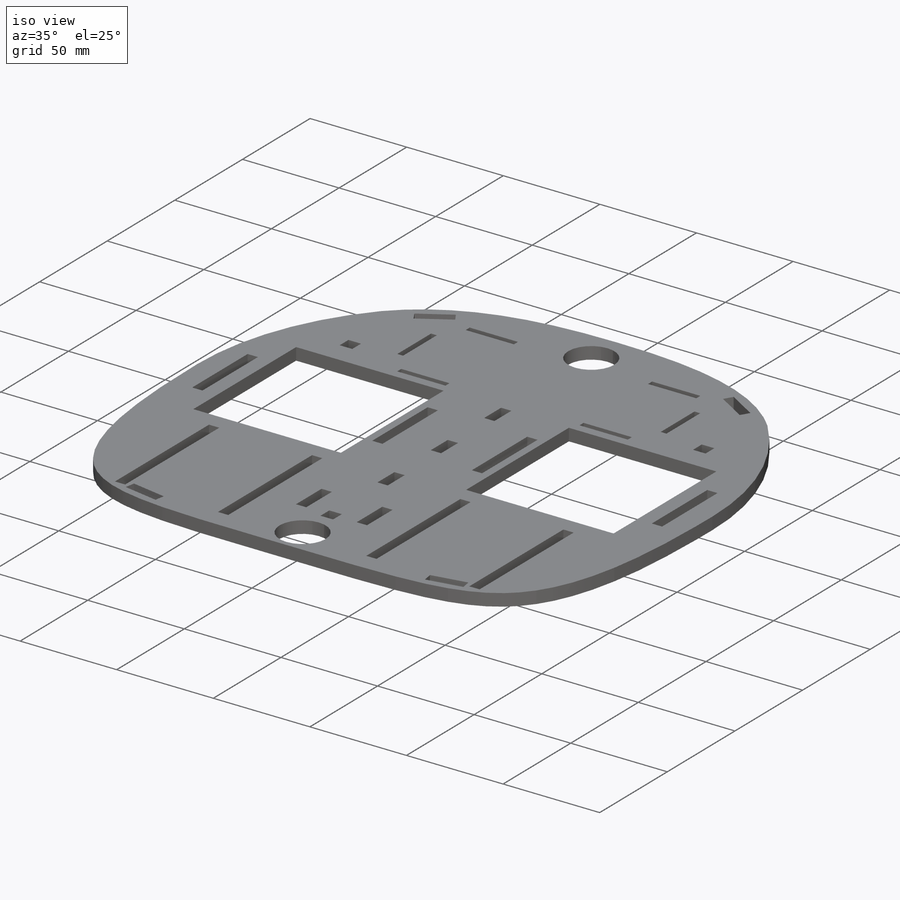
[diagram: iso view]
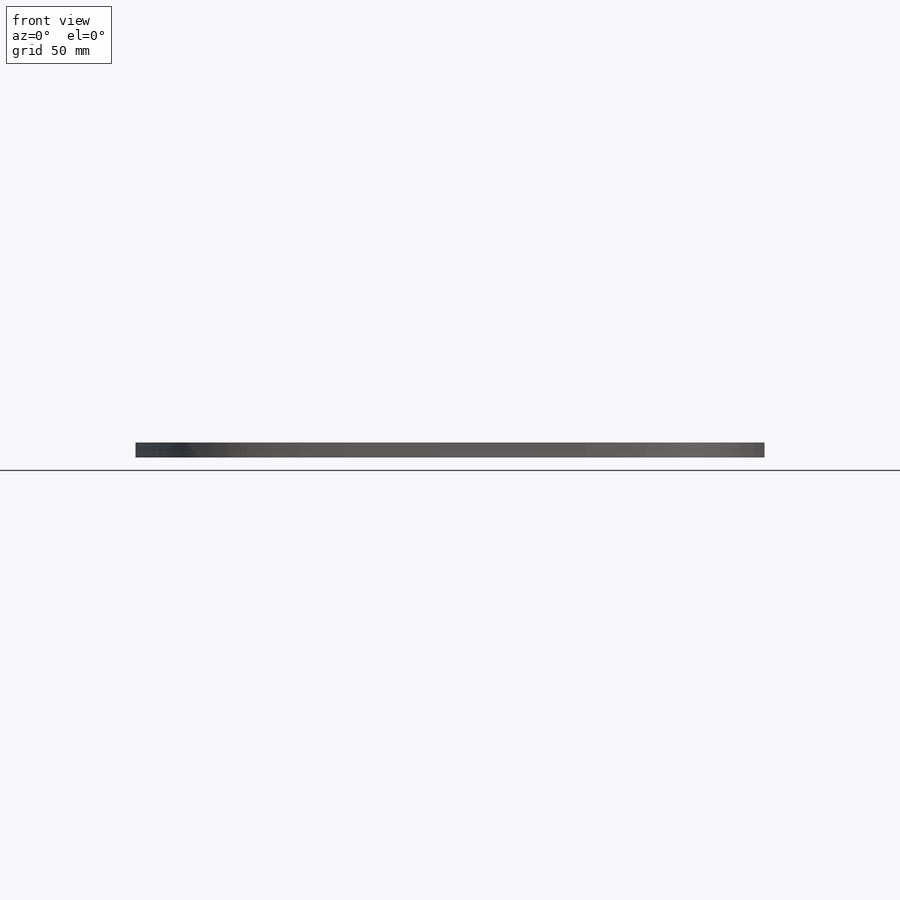
[diagram: front view]
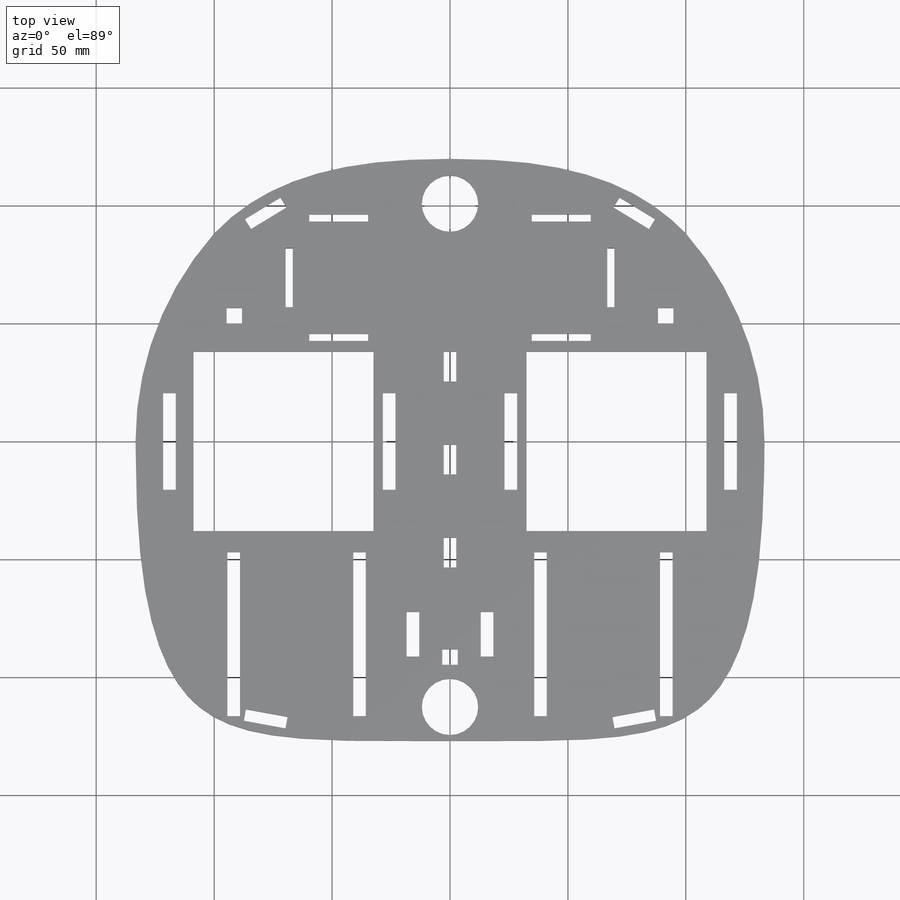
[diagram: top view]
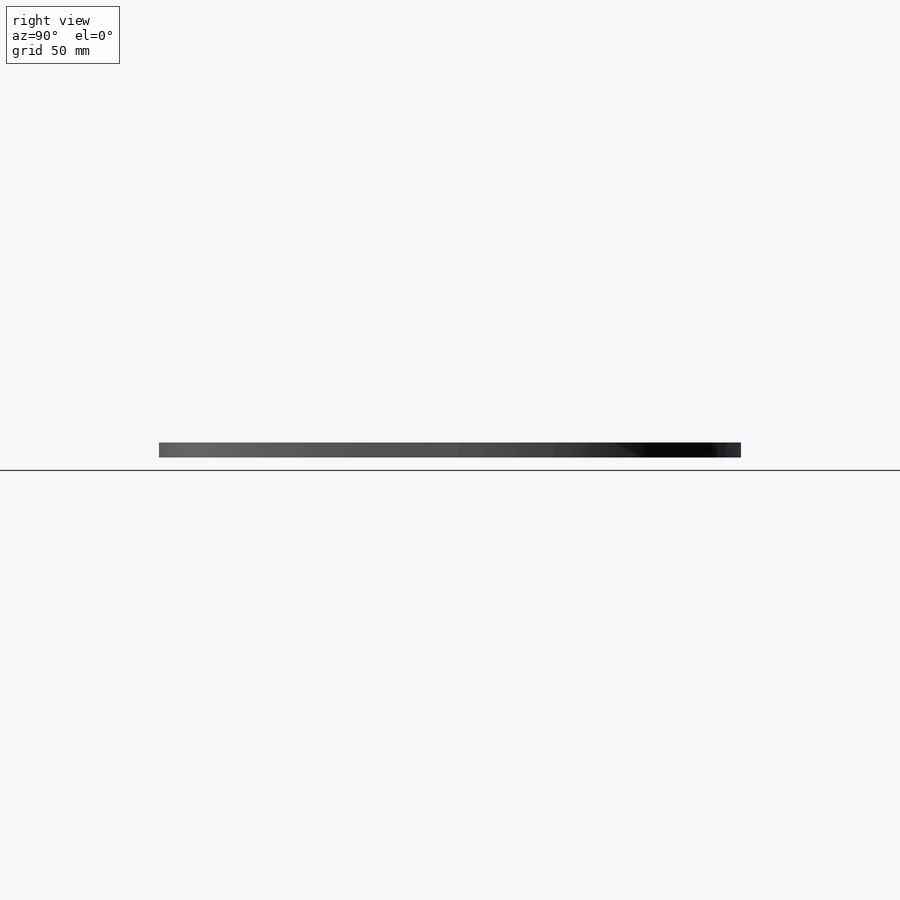
[diagram: right view]
SOLIDWORKS PART (.sldprt)
format: sldprt  version: not decoded by parser v0  size: 560,640 bytes
history: native  units: mm
features: sketch x13, cut_extrude x8, material x1, extrude x1 (+11 scaffold rows collapsed)
feature tree (34):
  scaffold x11  (default folders/planes/origin — collapsed)
  material  "Material <not specified>"
  sketch  "Sketch1"  dims[D1=266.7mm]
  extrude  "Base"  Depth=6.35mm
  sketch  "ShaftLayout"  dims[D1=58.0mm D2=76.0mm D3=7.62mm D4=2.794mm D5=31.75mm D6=9.906mm D7=12.7mm D8=19.05mm D9=1.5875mm D10=12.7mm D11=15.875mm D12=19.05mm D13=1.5875mm D14=15.875mm D15=12.7mm D16=6.35mm D17=20.066mm D18=20.0mm D19=11.0mm]
  sketch  "MotorLayout"  dims[c1.D1=6.35mm c1.D2=76.0mm c1.D3=57.0mm c1.D4=20.0mm c1.D5=15.24mm c2.D1=20.0mm c2.D4=2.794mm c2.D6=31.75mm c2.D7=20.6375mm c2.D8=12.7mm c2.D9=31.75mm c3.D1=20.0mm c3.D9=7.62mm c3.D10=16.51mm]
  sketch  "Sketch6"  dims[D1=~3.96875mm D2=~3.96875mm D3=12.573mm D4=12.573mm D5=5.334mm D6=5.334mm D7=12.573mm]
  cut_extrude  "WheelShaftCut"  [1 undecoded]
  sketch  "Sketch8"  dims[c1.D1=6.35mm c1.D2=6.35mm c2.D1=5.334mm c2.D2=6.2865mm c2.D4=5.334mm c2.D5=18.923mm c2.D6=6.2865mm c2.D3=2.0]
  cut_extrude  "MotorCut"  [1 undecoded]
  sketch  "BatteryLayout"  dims[D1=133.35mm D2=47.625mm D3=7.62mm]
  sketch  "Sketch10"  dims[D1=3.0mm D2=3.0mm D3=25.0mm D4=25.0mm D5=6.985mm D6=6.985mm D7=3.0mm D8=25.0mm]
  cut_extrude  "VelcroCut"  [1 undecoded]
  sketch  "Sketch11"  dims[c1.D1=6.35mm c1.D2=6.35mm c2.D1=6.35mm c2.D2=6.35mm c2.D3=6.35mm c2.D6=6.35mm c3.D2=6.35mm c3.D5=6.35mm c4.D2=6.35mm c4.D4=6.35mm c5.D2=11.684mm c5.D4=9.525mm c5.D5=38.1mm c5.D6=91.44mm c6.D2=107.775mm c6.D5=55.145mm c7.D2=53.34mm c7.D4=91.44mm c7.D5=6.5278mm c7.D7=6.5278mm c7.D8=6.5278mm c7.D9=6.5278mm c7.D10=6.5278mm c7.D11=6.5278mm]
  cut_extrude  "ScrewCut"  [1 undecoded]
  sketch  "Sketch13"  dims[D1=5.334mm D2=12.573mm D3=0.0mm D5=91.44mm D4=3.0]
  cut_extrude  "SupportStrutCut"  [1 undecoded]
  sketch  "Sketch16"
  cut_extrude  "EmptySpaceTrim"  [1 undecoded]
  sketch  "Sketch15"  dims[c1.D1=17.78mm c1.D2=5.08mm c2.D1=17.78mm c2.D2=5.08mm c2.D3=5.08mm c2.D4=17.78mm c3.D1=4.953mm c3.D2=17.653mm c3.D3=17.653mm c3.D4=4.953mm]
  cut_extrude  "TapeSensorCut"  [1 undecoded]
  sketch  "Sketch17"  dims[D1=23.876mm D2=10.0mm D3=23.876mm]
  cut_extrude  "CasterCut"  [1 undecoded]
  sketch  "Layer1Limits"  dims[D1=254.0mm D2=254.0mm]
decode coverage: 13 of 22 modeling features carry decoded parameters
note: ~ marks probable driven/reference dimensions
note: 8 parameter values undecoded
summary: no parameter record found for 8 features
note: suppression state not decoded; provenance and decode notes live in map.json
